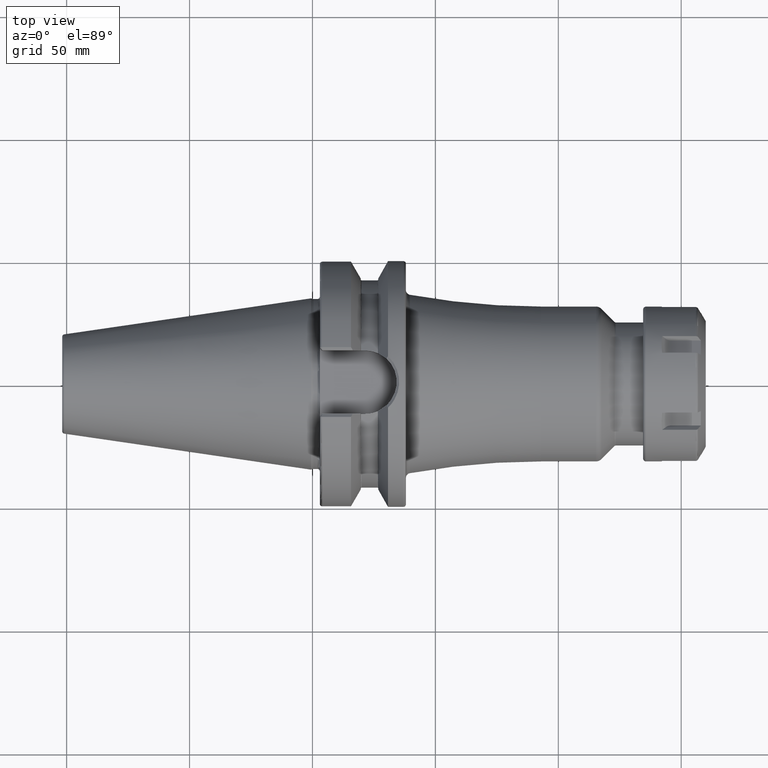
[diagram: clean part render]
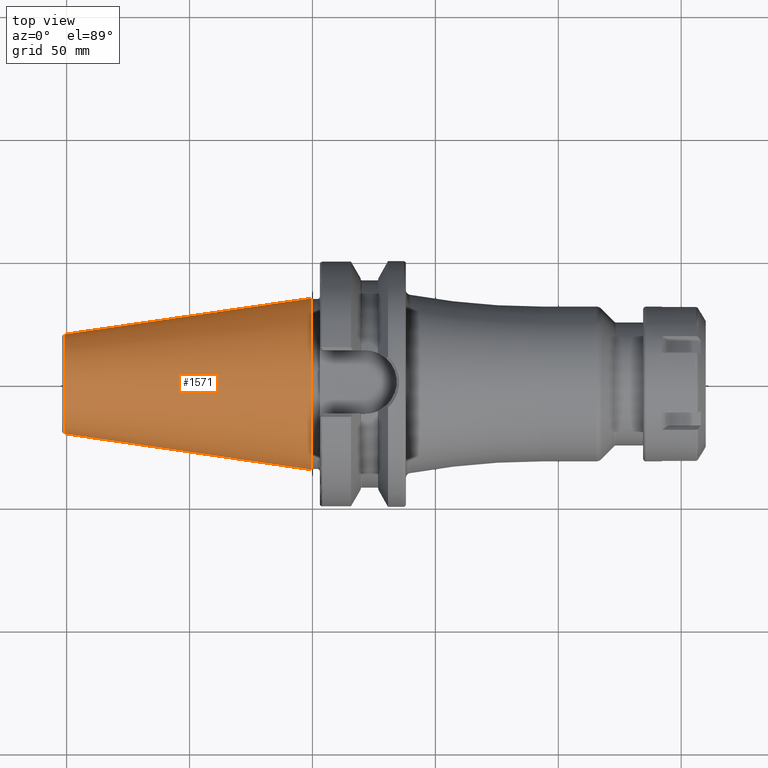
[diagram: same view with one face highlighted and labeled with its STEP entity id]
A machine part, top view. The second image highlights one B-rep face of the part: STEP entity #1571.
In plain terms, the highlighted conical surface has half-angle 8.298 deg.
Its self-contained STEP definition (entity closure, byte-faithful):
#37=CARTESIAN_POINT('',(-1.009443186692E2,0.E0,0.E0));
#38=DIRECTION('',(1.E0,0.E0,0.E0));
#39=DIRECTION('',(0.E0,1.E0,0.E0));
#40=AXIS2_PLACEMENT_3D('',#37,#38,#39);
#42=CARTESIAN_POINT('',(-6.191906162850E-1,0.E0,0.E0));
#43=DIRECTION('',(1.E0,0.E0,0.E0));
#44=DIRECTION('',(0.E0,1.E0,0.E0));
#45=AXIS2_PLACEMENT_3D('',#42,#43,#44);
#47=DIRECTION('',(-9.895312636440E-1,-1.443186691705E-1,0.E0));
#48=VECTOR('',#47,1.013865167670E2);
#49=CARTESIAN_POINT('',(-6.191906162849E-1,3.483469384295E1,0.E0));
#50=LINE('',#49,#48);
#51=DIRECTION('',(-9.895312636440E-1,1.443186691705E-1,0.E0));
#52=VECTOR('',#51,1.013865167670E2);
#53=CARTESIAN_POINT('',(-6.191906162849E-1,-3.483469384295E1,0.E0));
#54=LINE('',#53,#52);
#1244=CARTESIAN_POINT('',(-1.009443186692E2,2.020272667130E1,0.E0));
#1246=VERTEX_POINT('',#1244);
#1248=CARTESIAN_POINT('',(-1.009443186692E2,-2.020272667130E1,0.E0));
#1250=VERTEX_POINT('',#1248);
#1463=CARTESIAN_POINT('',(-6.191906162849E-1,3.483469384295E1,0.E0));
#1464=VERTEX_POINT('',#1463);
#1465=CARTESIAN_POINT('',(-6.191906162849E-1,-3.483469384295E1,0.E0));
#1466=VERTEX_POINT('',#1465);
#1557=CARTESIAN_POINT('',(-5.078175464273E1,0.E0,0.E0));
#1558=DIRECTION('',(1.E0,0.E0,0.E0));
#1559=DIRECTION('',(0.E0,-1.E0,0.E0));
#1560=AXIS2_PLACEMENT_3D('',#1557,#1558,#1559);
#1561=CONICAL_SURFACE('',#1560,2.751871025712E1,8.297826828206E0);
#1563=ORIENTED_EDGE('',*,*,#1562,.F.);
#1565=ORIENTED_EDGE('',*,*,#1564,.T.);
#1567=ORIENTED_EDGE('',*,*,#1566,.T.);
#1568=ORIENTED_EDGE('',*,*,#1550,.F.);
#1569=EDGE_LOOP('',(#1563,#1565,#1567,#1568));
#1570=FACE_OUTER_BOUND('',#1569,.F.);
#1571=ADVANCED_FACE('',(#1570),#1561,.T.);
#41=CIRCLE('',#40,2.020272667130E1);
#46=CIRCLE('',#45,3.483469384295E1);
#1550=EDGE_CURVE('',#1246,#1250,#41,.T.);
#1562=EDGE_CURVE('',#1464,#1246,#50,.T.);
#1564=EDGE_CURVE('',#1464,#1466,#46,.T.);
#1566=EDGE_CURVE('',#1466,#1250,#54,.T.);